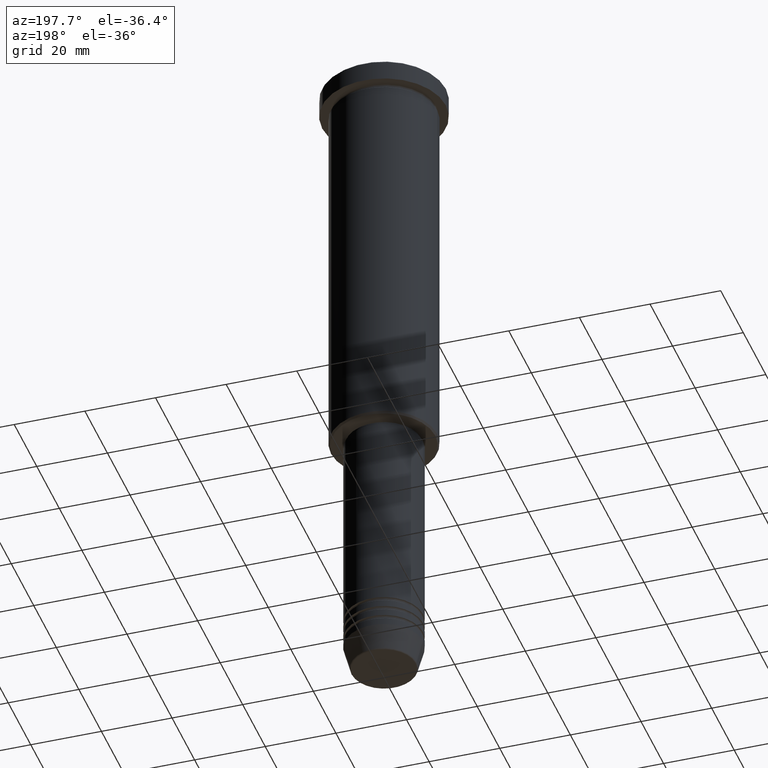
[diagram: clean part render]
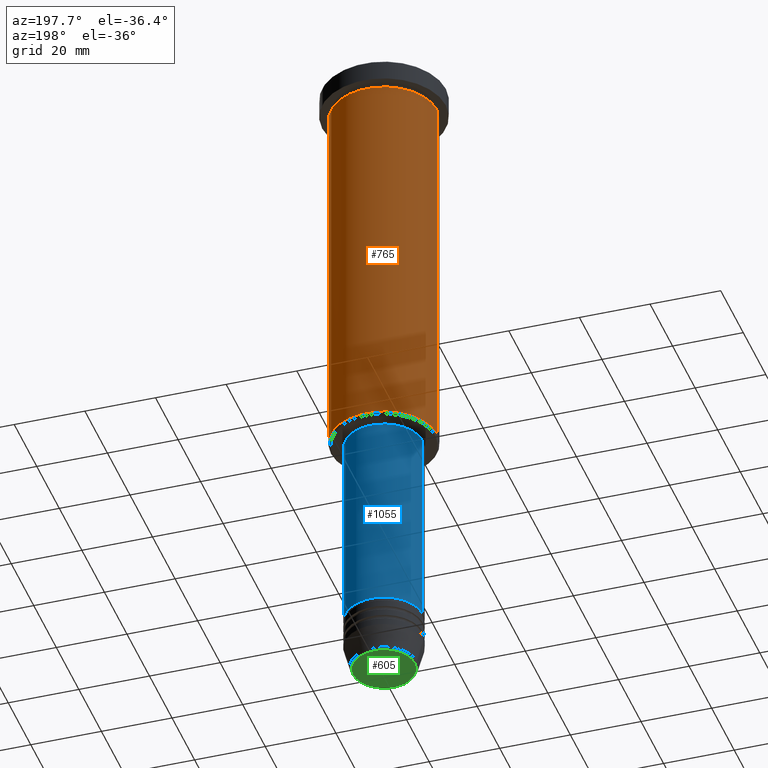
[diagram: same view with three faces highlighted in distinct colors, each labeled with its STEP entity id]
A machine part, auxiliary view with three faces highlighted in distinct colors.
Their STEP definitions:

[orange] entity #765 — the highlighted cylindrical surface (partial cylindrical patch) has radius 15 mm, axis along (-0, -0, 1).
#41 = CARTESIAN_POINT ( 'NONE',  ( 0.000000000000000000, 0.000000000000000000, 0.000000000000000000 ) ) ;
#50 = VECTOR ( 'NONE', #359, 1000.000000000000000 ) ;
#78 = CARTESIAN_POINT ( 'NONE',  ( 15.00000000000000000, 0.000000000000000000, 0.000000000000000000 ) ) ;
#93 = DIRECTION ( 'NONE',  ( -0.000000000000000000, -0.000000000000000000, 1.000000000000000000 ) ) ;
#159 = AXIS2_PLACEMENT_3D ( 'NONE', #41, #968, #608 ) ;
#161 = EDGE_CURVE ( 'NONE', #582, #1124, #527, .T. ) ;
#208 = CARTESIAN_POINT ( 'NONE',  ( 15.00000000000000000, 0.000000000000000000, -6.999999999999995559 ) ) ;
#225 = VERTEX_POINT ( 'NONE', #853 ) ;
#240 = CIRCLE ( 'NONE', #640, 15.00000000000000000 ) ;
#287 = EDGE_LOOP ( 'NONE', ( #673, #505, #871, #942 ) ) ;
#288 = DIRECTION ( 'NONE',  ( -0.000000000000000000, -0.000000000000000000, 1.000000000000000000 ) ) ;
#359 = DIRECTION ( 'NONE',  ( -0.000000000000000000, -0.000000000000000000, 1.000000000000000000 ) ) ;
#505 = ORIENTED_EDGE ( 'NONE', *, *, #510, .T. ) ;
#510 = EDGE_CURVE ( 'NONE', #537, #225, #533, .T. ) ;
#527 = LINE ( 'NONE', #78, #50 ) ;
#529 = CARTESIAN_POINT ( 'NONE',  ( 0.000000000000000000, 0.000000000000000000, -6.999999999999995559 ) ) ;
#533 = LINE ( 'NONE', #1090, #1150 ) ;
#537 = VERTEX_POINT ( 'NONE', #903 ) ;
#582 = VERTEX_POINT ( 'NONE', #816 ) ;
#595 = CIRCLE ( 'NONE', #617, 15.00000000000000000 ) ;
#608 = DIRECTION ( 'NONE',  ( 1.000000000000000000, 0.000000000000000000, 0.000000000000000000 ) ) ;
#617 = AXIS2_PLACEMENT_3D ( 'NONE', #529, #93, #724 ) ;
#629 = DIRECTION ( 'NONE',  ( -0.000000000000000000, -0.000000000000000000, 1.000000000000000000 ) ) ;
#640 = AXIS2_PLACEMENT_3D ( 'NONE', #1012, #288, #895 ) ;
#673 = ORIENTED_EDGE ( 'NONE', *, *, #924, .T. ) ;
#681 = CYLINDRICAL_SURFACE ( 'NONE', #159, 15.00000000000000000 ) ;
#724 = DIRECTION ( 'NONE',  ( 1.000000000000000000, 0.000000000000000000, 0.000000000000000000 ) ) ;
#765 = ADVANCED_FACE ( 'NONE', ( #1118 ), #681, .T. ) ;
#816 = CARTESIAN_POINT ( 'NONE',  ( 15.00000000000000000, 0.000000000000000000, -115.5000000000000568 ) ) ;
#853 = CARTESIAN_POINT ( 'NONE',  ( -15.00000000000000000, 1.836970198721029589E-15, -6.999999999999995559 ) ) ;
#871 = ORIENTED_EDGE ( 'NONE', *, *, #954, .F. ) ;
#895 = DIRECTION ( 'NONE',  ( -1.000000000000000000, 0.000000000000000000, 0.000000000000000000 ) ) ;
#903 = CARTESIAN_POINT ( 'NONE',  ( -15.00000000000000000, 1.836970198721029589E-15, -115.5000000000000568 ) ) ;
#924 = EDGE_CURVE ( 'NONE', #582, #537, #240, .T. ) ;
#942 = ORIENTED_EDGE ( 'NONE', *, *, #161, .F. ) ;
#954 = EDGE_CURVE ( 'NONE', #1124, #225, #595, .T. ) ;
#968 = DIRECTION ( 'NONE',  ( -0.000000000000000000, -0.000000000000000000, 1.000000000000000000 ) ) ;
#1012 = CARTESIAN_POINT ( 'NONE',  ( 0.000000000000000000, 0.000000000000000000, -115.5000000000000568 ) ) ;
#1090 = CARTESIAN_POINT ( 'NONE',  ( -15.00000000000000000, 1.836970198721029589E-15, 0.000000000000000000 ) ) ;
#1118 = FACE_OUTER_BOUND ( 'NONE', #287, .T. ) ;
#1124 = VERTEX_POINT ( 'NONE', #208 ) ;
#1150 = VECTOR ( 'NONE', #629, 1000.000000000000000 ) ;

[blue] entity #1055 — the highlighted cylindrical surface (partial cylindrical patch) has radius 11 mm, axis along (-0, -0, 1).
#2 = DIRECTION ( 'NONE',  ( -0.000000000000000000, -0.000000000000000000, 1.000000000000000000 ) ) ;
#23 = CIRCLE ( 'NONE', #691, 11.00000000000000000 ) ;
#24 = VERTEX_POINT ( 'NONE', #55 ) ;
#29 = CIRCLE ( 'NONE', #330, 11.00000000000000000 ) ;
#52 = LINE ( 'NONE', #135, #660 ) ;
#55 = CARTESIAN_POINT ( 'NONE',  ( -11.00000000000000000, 1.347111479062088405E-15, -117.0000000000000142 ) ) ;
#62 = VECTOR ( 'NONE', #618, 1000.000000000000000 ) ;
#135 = CARTESIAN_POINT ( 'NONE',  ( 11.00000000000000000, 0.000000000000000000, 0.000000000000000000 ) ) ;
#147 = EDGE_CURVE ( 'NONE', #221, #24, #29, .T. ) ;
#166 = DIRECTION ( 'NONE',  ( 1.000000000000000000, 0.000000000000000000, 0.000000000000000000 ) ) ;
#170 = VERTEX_POINT ( 'NONE', #632 ) ;
#221 = VERTEX_POINT ( 'NONE', #490 ) ;
#249 = CARTESIAN_POINT ( 'NONE',  ( 0.000000000000000000, 0.000000000000000000, 0.000000000000000000 ) ) ;
#253 = CARTESIAN_POINT ( 'NONE',  ( 11.00000000000000000, 0.000000000000000000, -175.0000000000000000 ) ) ;
#330 = AXIS2_PLACEMENT_3D ( 'NONE', #625, #2, #166 ) ;
#352 = ORIENTED_EDGE ( 'NONE', *, *, #147, .F. ) ;
#482 = VERTEX_POINT ( 'NONE', #253 ) ;
#490 = CARTESIAN_POINT ( 'NONE',  ( 11.00000000000000000, 0.000000000000000000, -117.0000000000000142 ) ) ;
#512 = CARTESIAN_POINT ( 'NONE',  ( 0.000000000000000000, 0.000000000000000000, -175.0000000000000000 ) ) ;
#601 = DIRECTION ( 'NONE',  ( -0.000000000000000000, -0.000000000000000000, 1.000000000000000000 ) ) ;
#618 = DIRECTION ( 'NONE',  ( -0.000000000000000000, -0.000000000000000000, 1.000000000000000000 ) ) ;
#624 = EDGE_CURVE ( 'NONE', #482, #170, #23, .T. ) ;
#625 = CARTESIAN_POINT ( 'NONE',  ( 0.000000000000000000, 0.000000000000000000, -117.0000000000000142 ) ) ;
#632 = CARTESIAN_POINT ( 'NONE',  ( -11.00000000000000000, 1.347111479062088405E-15, -175.0000000000000000 ) ) ;
#660 = VECTOR ( 'NONE', #860, 1000.000000000000000 ) ;
#662 = EDGE_CURVE ( 'NONE', #170, #24, #1146, .T. ) ;
#691 = AXIS2_PLACEMENT_3D ( 'NONE', #512, #894, #889 ) ;
#714 = CYLINDRICAL_SURFACE ( 'NONE', #1021, 11.00000000000000000 ) ;
#799 = FACE_OUTER_BOUND ( 'NONE', #907, .T. ) ;
#860 = DIRECTION ( 'NONE',  ( -0.000000000000000000, -0.000000000000000000, 1.000000000000000000 ) ) ;
#879 = CARTESIAN_POINT ( 'NONE',  ( -11.00000000000000000, 1.347111479062088405E-15, 0.000000000000000000 ) ) ;
#889 = DIRECTION ( 'NONE',  ( 1.000000000000000000, 0.000000000000000000, 0.000000000000000000 ) ) ;
#894 = DIRECTION ( 'NONE',  ( -0.000000000000000000, -0.000000000000000000, 1.000000000000000000 ) ) ;
#901 = ORIENTED_EDGE ( 'NONE', *, *, #1007, .F. ) ;
#907 = EDGE_LOOP ( 'NONE', ( #1027, #1013, #352, #901 ) ) ;
#978 = DIRECTION ( 'NONE',  ( 1.000000000000000000, 0.000000000000000000, 0.000000000000000000 ) ) ;
#1007 = EDGE_CURVE ( 'NONE', #482, #221, #52, .T. ) ;
#1013 = ORIENTED_EDGE ( 'NONE', *, *, #662, .T. ) ;
#1021 = AXIS2_PLACEMENT_3D ( 'NONE', #249, #601, #978 ) ;
#1027 = ORIENTED_EDGE ( 'NONE', *, *, #624, .T. ) ;
#1055 = ADVANCED_FACE ( 'NONE', ( #799 ), #714, .T. ) ;
#1146 = LINE ( 'NONE', #879, #62 ) ;

[green] entity #605 — the highlighted planar face has unit normal (0, -0, 1).
#80 = VERTEX_POINT ( 'NONE', #435 ) ;
#114 = DIRECTION ( 'NONE',  ( 1.000000000000000000, 0.000000000000000000, 0.000000000000000000 ) ) ;
#162 = DIRECTION ( 'NONE',  ( 1.000000000000000000, 0.000000000000000000, 0.000000000000000000 ) ) ;
#189 = EDGE_CURVE ( 'NONE', #80, #412, #1022, .T. ) ;
#194 = EDGE_LOOP ( 'NONE', ( #427, #372 ) ) ;
#209 = DIRECTION ( 'NONE',  ( 0.000000000000000000, 0.000000000000000000, -1.000000000000000000 ) ) ;
#242 = AXIS2_PLACEMENT_3D ( 'NONE', #308, #760, #655 ) ;
#267 = FACE_OUTER_BOUND ( 'NONE', #194, .T. ) ;
#290 = EDGE_CURVE ( 'NONE', #412, #80, #794, .T. ) ;
#295 = AXIS2_PLACEMENT_3D ( 'NONE', #615, #1084, #162 ) ;
#308 = CARTESIAN_POINT ( 'NONE',  ( 0.000000000000000000, 0.000000000000000000, -191.0000000000000000 ) ) ;
#372 = ORIENTED_EDGE ( 'NONE', *, *, #290, .T. ) ;
#384 = CARTESIAN_POINT ( 'NONE',  ( 0.000000000000000000, 0.000000000000000000, -191.0000000000000000 ) ) ;
#412 = VERTEX_POINT ( 'NONE', #1136 ) ;
#427 = ORIENTED_EDGE ( 'NONE', *, *, #189, .T. ) ;
#435 = CARTESIAN_POINT ( 'NONE',  ( 8.740692158992663607, 0.000000000000000000, -191.0000000000000000 ) ) ;
#605 = ADVANCED_FACE ( 'NONE', ( #267 ), #727, .F. ) ;
#615 = CARTESIAN_POINT ( 'NONE',  ( 0.000000000000000000, 0.000000000000000000, -191.0000000000000000 ) ) ;
#655 = DIRECTION ( 'NONE',  ( 1.000000000000000000, 0.000000000000000000, 0.000000000000000000 ) ) ;
#727 = PLANE ( 'NONE',  #295 ) ;
#760 = DIRECTION ( 'NONE',  ( 0.000000000000000000, 0.000000000000000000, -1.000000000000000000 ) ) ;
#794 = CIRCLE ( 'NONE', #944, 8.740692158992663607 ) ;
#944 = AXIS2_PLACEMENT_3D ( 'NONE', #384, #209, #114 ) ;
#1022 = CIRCLE ( 'NONE', #242, 8.740692158992663607 ) ;
#1084 = DIRECTION ( 'NONE',  ( 0.000000000000000000, -0.000000000000000000, 1.000000000000000000 ) ) ;
#1136 = CARTESIAN_POINT ( 'NONE',  ( -8.740692158992663607, 1.099999016768740442E-15, -191.0000000000000000 ) ) ;